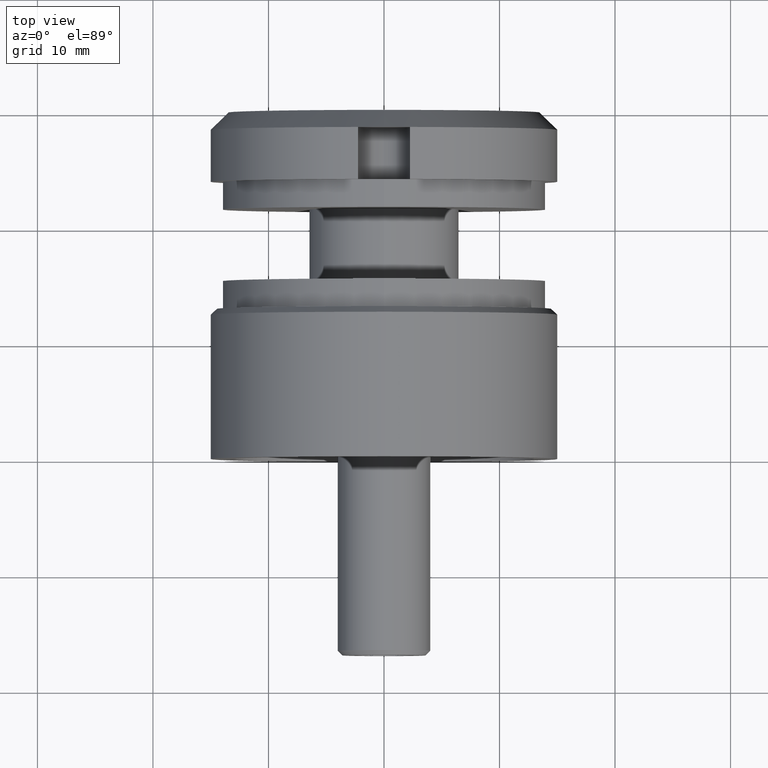
[diagram: clean part render]
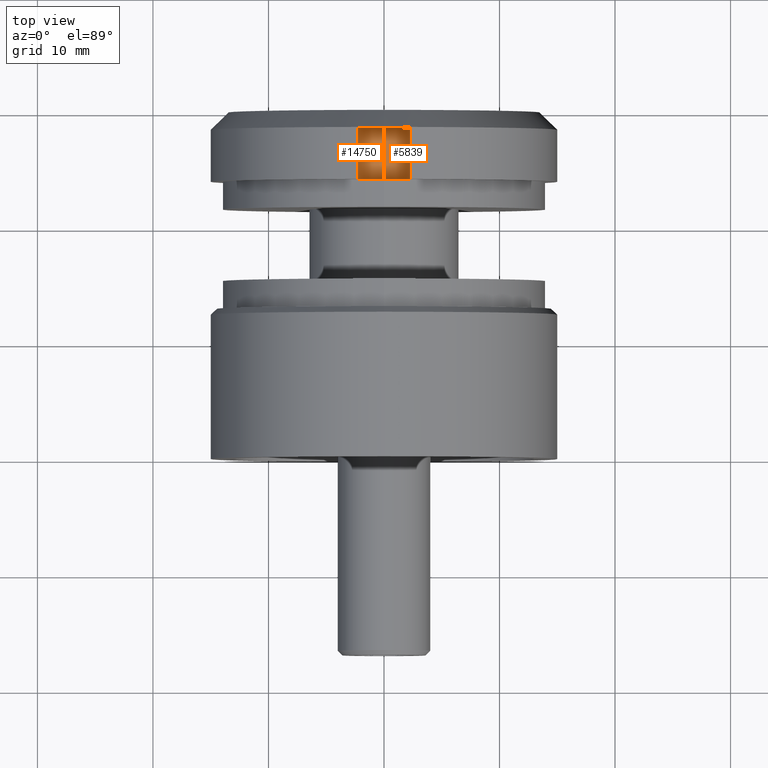
[diagram: same view with one multi-face feature highlighted, each face labeled with its STEP entity id]
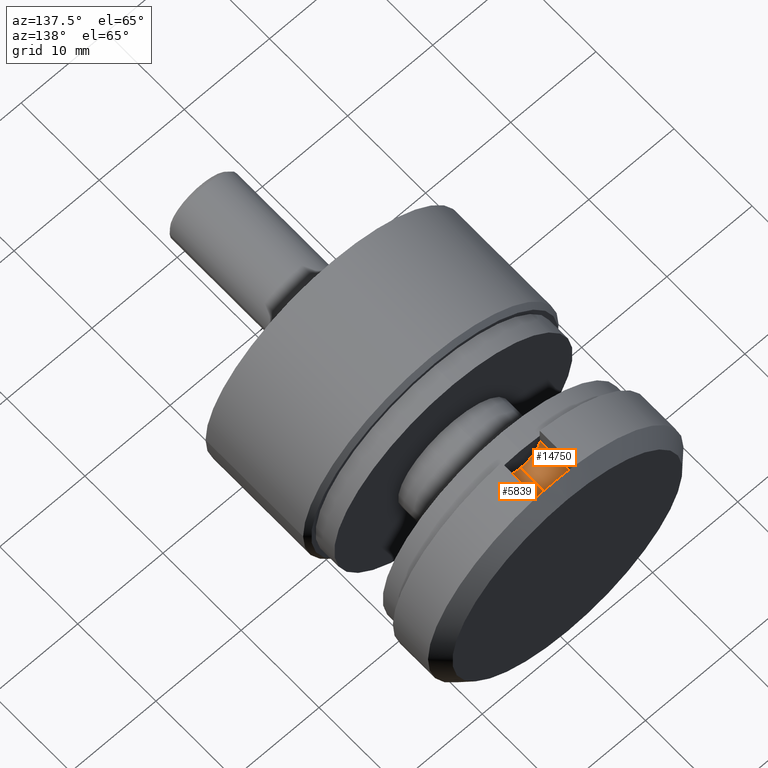
[diagram: same view with one multi-face feature highlighted, each face labeled with its STEP entity id]
A machine part, top view. The highlighted faces form ONE feature: a constant-radius fillet chain: 2 tangent blend faces with common blend radius 2.25 mm. The faces share edges in the B-rep.
A second angle (auxiliary view) of the same feature is appended — it is thin or edge-on in the first view.
Their STEP definitions:
[1] entity #14750 (Cylinder):
#101 = CARTESIAN_POINT ( 'NONE',  ( -4.336808689942017736E-16, 9.500000000000001776, 12.75000000000000000 ) ) ;
#441 = CARTESIAN_POINT ( 'NONE',  ( -2.250000000000000444, 5.000000000000000888, 12.75000000000000000 ) ) ;
#1666 = EDGE_CURVE ( 'NONE', #8947, #11136, #6119, .T. ) ;
#2499 = CARTESIAN_POINT ( 'NONE',  ( -4.336808689942017736E-16, 9.500000000000001776, 10.49999999999999822 ) ) ;
#3292 = EDGE_LOOP ( 'NONE', ( #3694, #6520, #6420, #10565 ) ) ;
#3694 = ORIENTED_EDGE ( 'NONE', *, *, #13186, .F. ) ;
#3701 = VERTEX_POINT ( 'NONE', #2499 ) ;
#3975 = CIRCLE ( 'NONE', #6192, 2.250000000000000444 ) ;
#4440 = VECTOR ( 'NONE', #10380, 1000.000000000000000 ) ;
#5554 = CARTESIAN_POINT ( 'NONE',  ( -2.250000000000000444, 9.500000000000001776, 12.75000000000000000 ) ) ;
#6119 = CIRCLE ( 'NONE', #9299, 2.250000000000000444 ) ;
#6192 = AXIS2_PLACEMENT_3D ( 'NONE', #101, #8578, #10951 ) ;
#6420 = ORIENTED_EDGE ( 'NONE', *, *, #9298, .F. ) ;
#6520 = ORIENTED_EDGE ( 'NONE', *, *, #10267, .F. ) ;
#6598 = CARTESIAN_POINT ( 'NONE',  ( -2.250000000000000444, 9.500000000000001776, 12.75000000000000000 ) ) ;
#6876 = CARTESIAN_POINT ( 'NONE',  ( -4.336808689942017736E-16, 9.500000000000001776, 12.75000000000000000 ) ) ;
#7225 = VECTOR ( 'NONE', #15605, 1000.000000000000000 ) ;
#7383 = FACE_OUTER_BOUND ( 'NONE', #3292, .T. ) ;
#8548 = CARTESIAN_POINT ( 'NONE',  ( -4.336808689942017736E-16, 5.000000000000000888, 12.75000000000000000 ) ) ;
#8578 = DIRECTION ( 'NONE',  ( 0.000000000000000000, -1.000000000000000000, 0.000000000000000000 ) ) ;
#8947 = VERTEX_POINT ( 'NONE', #9380 ) ;
#9298 = EDGE_CURVE ( 'NONE', #11136, #15699, #15463, .T. ) ;
#9299 = AXIS2_PLACEMENT_3D ( 'NONE', #8548, #11077, #11021 ) ;
#9380 = CARTESIAN_POINT ( 'NONE',  ( 0.000000000000000000, 5.000000000000000888, 10.49999999999999822 ) ) ;
#10267 = EDGE_CURVE ( 'NONE', #15699, #3701, #3975, .T. ) ;
#10380 = DIRECTION ( 'NONE',  ( -0.000000000000000000, 1.000000000000000000, -0.000000000000000000 ) ) ;
#10565 = ORIENTED_EDGE ( 'NONE', *, *, #1666, .F. ) ;
#10661 = DIRECTION ( 'NONE',  ( 0.000000000000000000, 1.000000000000000000, 0.000000000000000000 ) ) ;
#10784 = CARTESIAN_POINT ( 'NONE',  ( -4.336808689942017736E-16, 5.000000000000000888, 10.49999999999999822 ) ) ;
#10951 = DIRECTION ( 'NONE',  ( 0.000000000000000000, 0.000000000000000000, 1.000000000000000000 ) ) ;
#11021 = DIRECTION ( 'NONE',  ( 0.000000000000000000, 0.000000000000000000, -1.000000000000000000 ) ) ;
#11077 = DIRECTION ( 'NONE',  ( 0.000000000000000000, 1.000000000000000000, 0.000000000000000000 ) ) ;
#11136 = VERTEX_POINT ( 'NONE', #441 ) ;
#11614 = CYLINDRICAL_SURFACE ( 'NONE', #11825, 2.250000000000000444 ) ;
#11825 = AXIS2_PLACEMENT_3D ( 'NONE', #6876, #10661, #11882 ) ;
#11882 = DIRECTION ( 'NONE',  ( 0.000000000000000000, 0.000000000000000000, 1.000000000000000000 ) ) ;
#13155 = LINE ( 'NONE', #10784, #7225 ) ;
#13186 = EDGE_CURVE ( 'NONE', #3701, #8947, #13155, .T. ) ;
#14750 = ADVANCED_FACE ( 'NONE', ( #7383 ), #11614, .F. ) ;
#15463 = LINE ( 'NONE', #5554, #4440 ) ;
#15605 = DIRECTION ( 'NONE',  ( 0.000000000000000000, -1.000000000000000000, 0.000000000000000000 ) ) ;
#15699 = VERTEX_POINT ( 'NONE', #6598 ) ;
[2] entity #5839 (Cylinder):
#1115 = CARTESIAN_POINT ( 'NONE',  ( 2.250000000000000000, 5.000000000000000888, 12.75000000000000000 ) ) ;
#1272 = VECTOR ( 'NONE', #13151, 1000.000000000000000 ) ;
#1300 = ORIENTED_EDGE ( 'NONE', *, *, #7698, .F. ) ;
#1874 = EDGE_LOOP ( 'NONE', ( #7084, #8636, #14530, #1300 ) ) ;
#2499 = CARTESIAN_POINT ( 'NONE',  ( -4.336808689942017736E-16, 9.500000000000001776, 10.49999999999999822 ) ) ;
#3127 = AXIS2_PLACEMENT_3D ( 'NONE', #11792, #12998, #7981 ) ;
#3156 = DIRECTION ( 'NONE',  ( 0.000000000000000000, 1.000000000000000000, 0.000000000000000000 ) ) ;
#3701 = VERTEX_POINT ( 'NONE', #2499 ) ;
#4762 = VERTEX_POINT ( 'NONE', #11961 ) ;
#4899 = AXIS2_PLACEMENT_3D ( 'NONE', #11720, #3156, #11874 ) ;
#5636 = CYLINDRICAL_SURFACE ( 'NONE', #3127, 2.250000000000000444 ) ;
#5839 = ADVANCED_FACE ( 'NONE', ( #14180 ), #5636, .F. ) ;
#6123 = CARTESIAN_POINT ( 'NONE',  ( 0.000000000000000000, 9.500000000000001776, 12.75000000000000000 ) ) ;
#6313 = AXIS2_PLACEMENT_3D ( 'NONE', #6123, #8540, #9768 ) ;
#7084 = ORIENTED_EDGE ( 'NONE', *, *, #12588, .F. ) ;
#7225 = VECTOR ( 'NONE', #15605, 1000.000000000000000 ) ;
#7240 = CIRCLE ( 'NONE', #6313, 2.250000000000000444 ) ;
#7698 = EDGE_CURVE ( 'NONE', #12459, #4762, #11730, .T. ) ;
#7981 = DIRECTION ( 'NONE',  ( 0.000000000000000000, 0.000000000000000000, 1.000000000000000000 ) ) ;
#8357 = CIRCLE ( 'NONE', #4899, 2.250000000000000444 ) ;
#8540 = DIRECTION ( 'NONE',  ( 0.000000000000000000, -1.000000000000000000, 0.000000000000000000 ) ) ;
#8636 = ORIENTED_EDGE ( 'NONE', *, *, #13186, .T. ) ;
#8947 = VERTEX_POINT ( 'NONE', #9380 ) ;
#9045 = CARTESIAN_POINT ( 'NONE',  ( 2.250000000000000000, 9.500000000000001776, 12.75000000000000000 ) ) ;
#9380 = CARTESIAN_POINT ( 'NONE',  ( 0.000000000000000000, 5.000000000000000888, 10.49999999999999822 ) ) ;
#9768 = DIRECTION ( 'NONE',  ( 0.000000000000000000, 0.000000000000000000, 1.000000000000000000 ) ) ;
#10784 = CARTESIAN_POINT ( 'NONE',  ( -4.336808689942017736E-16, 5.000000000000000888, 10.49999999999999822 ) ) ;
#11720 = CARTESIAN_POINT ( 'NONE',  ( 0.000000000000000000, 5.000000000000000888, 12.75000000000000000 ) ) ;
#11730 = LINE ( 'NONE', #1115, #1272 ) ;
#11792 = CARTESIAN_POINT ( 'NONE',  ( 0.000000000000000000, 9.500000000000001776, 12.75000000000000000 ) ) ;
#11874 = DIRECTION ( 'NONE',  ( 0.000000000000000000, 0.000000000000000000, -1.000000000000000000 ) ) ;
#11961 = CARTESIAN_POINT ( 'NONE',  ( 2.250000000000000000, 5.000000000000000888, 12.75000000000000000 ) ) ;
#12459 = VERTEX_POINT ( 'NONE', #9045 ) ;
#12588 = EDGE_CURVE ( 'NONE', #3701, #12459, #7240, .T. ) ;
#12998 = DIRECTION ( 'NONE',  ( 0.000000000000000000, 1.000000000000000000, 0.000000000000000000 ) ) ;
#13151 = DIRECTION ( 'NONE',  ( 0.000000000000000000, -1.000000000000000000, 0.000000000000000000 ) ) ;
#13155 = LINE ( 'NONE', #10784, #7225 ) ;
#13186 = EDGE_CURVE ( 'NONE', #3701, #8947, #13155, .T. ) ;
#13834 = EDGE_CURVE ( 'NONE', #4762, #8947, #8357, .T. ) ;
#14180 = FACE_OUTER_BOUND ( 'NONE', #1874, .T. ) ;
#14530 = ORIENTED_EDGE ( 'NONE', *, *, #13834, .F. ) ;
#15605 = DIRECTION ( 'NONE',  ( 0.000000000000000000, -1.000000000000000000, 0.000000000000000000 ) ) ;